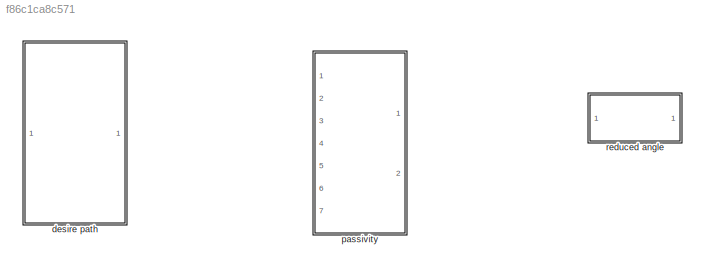
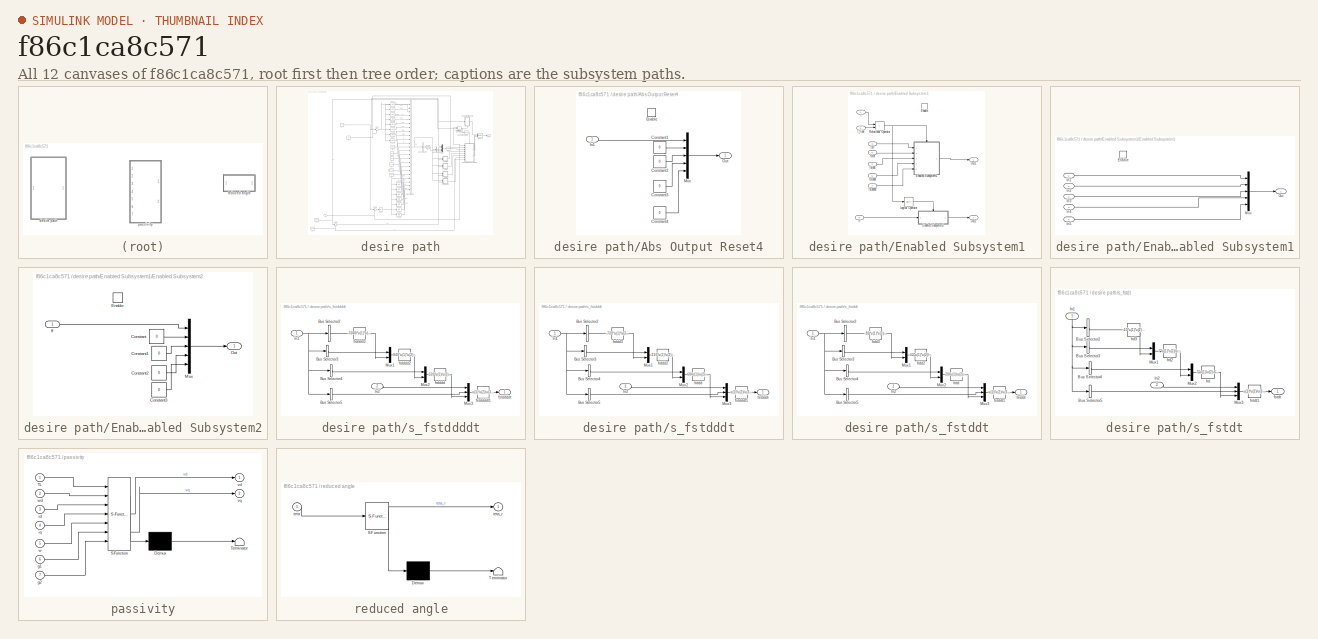
[diagram: thumbnail index - all 12 canvases of the model, root first then tree order]
MODEL slx_f86c1ca8c571
KIND model
CONFIG AbsTol = auto
CONFIG EnableMultiTasking = off
CONFIG FixedStep = auto
CONFIG MaxStep = auto
CONFIG MinStep = auto
CONFIG RelTol = 1e-3
CONFIG SampleTimeConstraint = Unconstrained
CONFIG SolverName = VariableStepAuto
CONFIG StartTime = 0.0
CONFIG StopTime = 10.0
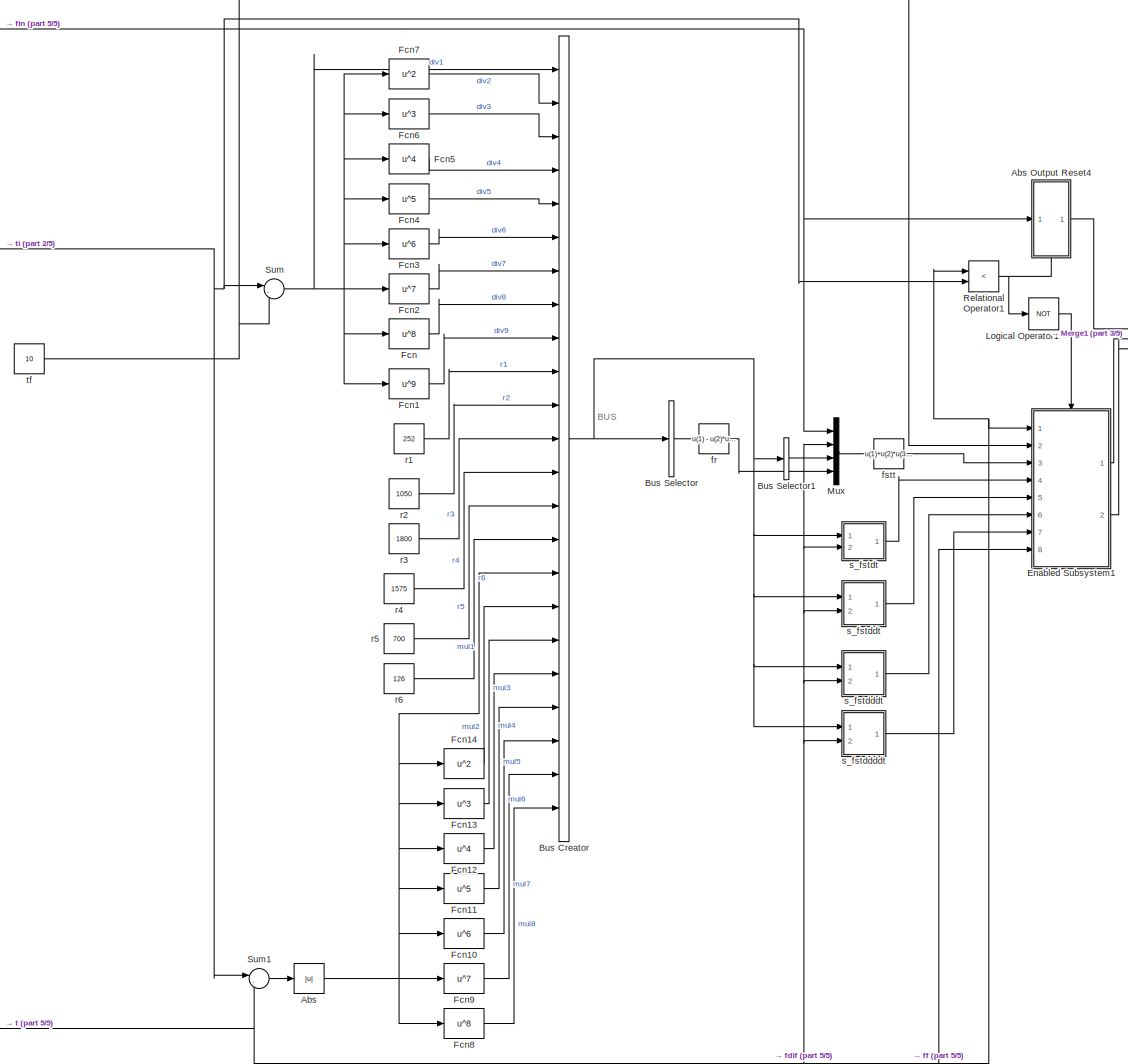
[diagram: desire path - part 1/5, center side, full height]
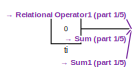
[diagram: desire path - part 2/5, top left region]
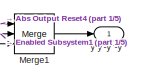
[diagram: desire path - part 3/5, top right region]
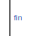
[diagram: desire path - part 4/5, middle left region]
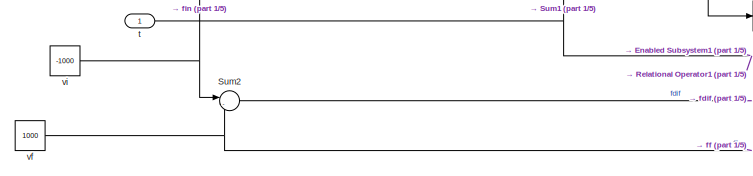
[diagram: desire path - part 5/5, bottom left region]
BLOCK [SubSystem] desire path
  Ports = [1, 1]
  RequestExecContextInheritance = off
BLOCK [Abs] desire path/Abs
BLOCK [SubSystem] desire path/Abs Output Reset4
  NameLocation = top
  Ports = [1, 1, 1]
  RequestExecContextInheritance = off
  TreatAsAtomicUnit = on
BLOCK [Constant] desire path/Abs Output Reset4/Constant1
  Value = 0
BLOCK [Constant] desire path/Abs Output Reset4/Constant2
  Value = 0
BLOCK [Constant] desire path/Abs Output Reset4/Constant3
  Value = 0
BLOCK [Constant] desire path/Abs Output Reset4/Constant4
  Value = 0
BLOCK [EnablePort] desire path/Abs Output Reset4/Enable
  Ports = []
BLOCK [Inport] desire path/Abs Output Reset4/In1
  PortDimensions = 1
BLOCK [Mux] desire path/Abs Output Reset4/Mux
  DisplayOption = bar
  Inputs = 5
  Ports = [5, 1]
BLOCK [Outport] desire path/Abs Output Reset4/Out
  InitialOutput = 0
  VectorParamsAs1DForOutWhenUnconnected = off
BLOCK [BusCreator] desire path/Bus Creator
  DisplayOption = bar
  InheritFromInputs = on
  Inputs = 23
  Ports = [23, 1]
BLOCK [BusSelector] desire path/Bus Selector
  OutputAsBus = on
  OutputSignals = r1,r2,mul1,div1,r3,mul2,div2,r4,mul3,div3,r5,mul4,div4,r6,mul5,div5
  Ports = [1, 1]
BLOCK [BusSelector] desire path/Bus Selector1
  OutputAsBus = on
  OutputSignals = mul5,div5
  Ports = [1, 1]
BLOCK [SubSystem] desire path/Enabled Subsystem1
  Ports = [8, 2, 1]
  RequestExecContextInheritance = off
  TreatAsAtomicUnit = on
BLOCK [EnablePort] desire path/Enabled Subsystem1/Enable
  Ports = []
BLOCK [SubSystem] desire path/Enabled Subsystem1/Enabled Subsystem1
  Ports = [5, 1, 1]
  RequestExecContextInheritance = off
  TreatAsAtomicUnit = on
BLOCK [EnablePort] desire path/Enabled Subsystem1/Enabled Subsystem1/Enable
  Ports = []
BLOCK [Inport] desire path/Enabled Subsystem1/Enabled Subsystem1/In1
  PortDimensions = 1
BLOCK [Inport] desire path/Enabled Subsystem1/Enabled Subsystem1/In2
  Port = 2
  PortDimensions = 1
BLOCK [Inport] desire path/Enabled Subsystem1/Enabled Subsystem1/In3
  Port = 3
  PortDimensions = 1
BLOCK [Inport] desire path/Enabled Subsystem1/Enabled Subsystem1/In4
  Port = 4
  PortDimensions = 1
BLOCK [Inport] desire path/Enabled Subsystem1/Enabled Subsystem1/In5
  Port = 5
  PortDimensions = 1
BLOCK [Mux] desire path/Enabled Subsystem1/Enabled Subsystem1/Mux
  DisplayOption = bar
  Inputs = 5
  Ports = [5, 1]
BLOCK [Outport] desire path/Enabled Subsystem1/Enabled Subsystem1/Out
  InitialOutput = 0
  VectorParamsAs1DForOutWhenUnconnected = off
BLOCK [SubSystem] desire path/Enabled Subsystem1/Enabled Subsystem2
  Ports = [1, 1, 1]
  RequestExecContextInheritance = off
  TreatAsAtomicUnit = on
BLOCK [Constant] desire path/Enabled Subsystem1/Enabled Subsystem2/Constant
  Value = 0
BLOCK [Constant] desire path/Enabled Subsystem1/Enabled Subsystem2/Constant1
  Value = 0
BLOCK [Constant] desire path/Enabled Subsystem1/Enabled Subsystem2/Constant2
  Value = 0
BLOCK [Constant] desire path/Enabled Subsystem1/Enabled Subsystem2/Constant3
  Value = 0
BLOCK [EnablePort] desire path/Enabled Subsystem1/Enabled Subsystem2/Enable
  Ports = []
BLOCK [Mux] desire path/Enabled Subsystem1/Enabled Subsystem2/Mux
  DisplayOption = bar
  Inputs = 5
  Ports = [5, 1]
BLOCK [Outport] desire path/Enabled Subsystem1/Enabled Subsystem2/Out
  InitialOutput = 0
  VectorParamsAs1DForOutWhenUnconnected = off
BLOCK [Inport] desire path/Enabled Subsystem1/Enabled Subsystem2/ff
  PortDimensions = 1
BLOCK [Logic] desire path/Enabled Subsystem1/Logical Operator
  AllPortsSameDT = off
  Operator = NOT
  Ports = [1, 1]
BLOCK [Outport] desire path/Enabled Subsystem1/Out1
  VectorParamsAs1DForOutWhenUnconnected = off
BLOCK [Outport] desire path/Enabled Subsystem1/Out2
  Port = 2
  VectorParamsAs1DForOutWhenUnconnected = off
BLOCK [RelationalOperator] desire path/Enabled Subsystem1/Relational Operator
  InputSameDT = off
  Operator = <
  Ports = [2, 1]
BLOCK [Inport] desire path/Enabled Subsystem1/ff
  Port = 8
  PortDimensions = 1
BLOCK [Inport] desire path/Enabled Subsystem1/fstddddt
  Port = 7
  PortDimensions = 1
BLOCK [Inport] desire path/Enabled Subsystem1/fstdddt
  Port = 6
  PortDimensions = 1
BLOCK [Inport] desire path/Enabled Subsystem1/fstddt
  Port = 5
  PortDimensions = 1
BLOCK [Inport] desire path/Enabled Subsystem1/fstdt
  Port = 4
  PortDimensions = 1
BLOCK [Inport] desire path/Enabled Subsystem1/fstt
  Port = 3
  PortDimensions = 1
BLOCK [Inport] desire path/Enabled Subsystem1/t
  PortDimensions = 1
BLOCK [Inport] desire path/Enabled Subsystem1/t_final
  Port = 2
  PortDimensions = 1
BLOCK [Fcn] desire path/Fcn
  Expr = u^8
BLOCK [Fcn] desire path/Fcn1
  Expr = u^9
BLOCK [Fcn] desire path/Fcn10
  Expr = u^6
BLOCK [Fcn] desire path/Fcn11
  Expr = u^5
BLOCK [Fcn] desire path/Fcn12
  Expr = u^4
BLOCK [Fcn] desire path/Fcn13
  Expr = u^3
BLOCK [Fcn] desire path/Fcn14
  Expr = u^2
BLOCK [Fcn] desire path/Fcn2
  Expr = u^7
BLOCK [Fcn] desire path/Fcn3
  Expr = u^6
BLOCK [Fcn] desire path/Fcn4
  Expr = u^5
BLOCK [Fcn] desire path/Fcn5
  Expr = u^4
BLOCK [Fcn] desire path/Fcn6
  Expr = u^3
BLOCK [Fcn] desire path/Fcn7
  Expr = u^2
BLOCK [Fcn] desire path/Fcn8
  Expr = u^8
BLOCK [Fcn] desire path/Fcn9
  Expr = u^7
BLOCK [Logic] desire path/Logical Operator1
  AllPortsSameDT = off
  Operator = NOT
  Ports = [1, 1]
BLOCK [Merge] desire path/Merge1
  Inputs = 3
  Ports = [3, 1]
BLOCK [Mux] desire path/Mux
  DisplayOption = bar
  Ports = [4, 1]
BLOCK [RelationalOperator] desire path/Relational Operator1
  InputSameDT = off
  Operator = <
  Ports = [2, 1]
BLOCK [Sum] desire path/Sum
  Inputs = |-+
  Ports = [2, 1]
  SaturateOnIntegerOverflow = on
BLOCK [Sum] desire path/Sum1
  Inputs = |-+
  Ports = [2, 1]
  SaturateOnIntegerOverflow = on
BLOCK [Sum] desire path/Sum2
  Inputs = |-+
  Ports = [2, 1]
  SaturateOnIntegerOverflow = on
BLOCK [Fcn] desire path/fr
  Expr = u(1) - u(2)*u(3)/u(4)+u(5)*u(6)/u(7) - u(8)*u(9)/u(10) + u(11)*u(12)/u(13) - u(14)*u(15)/u(16)
BLOCK [Fcn] desire path/fstt
  Expr = u(1)+u(2)*u(3)/u(4)*u(5)
BLOCK [Constant] desire path/r1
  Value = 252
BLOCK [Constant] desire path/r2
  Value = 1050
BLOCK [Constant] desire path/r3
  Value = 1800
BLOCK [Constant] desire path/r4
  Value = 1575
BLOCK [Constant] desire path/r5
  Value = 700
BLOCK [Constant] desire path/r6
  Value = 126
BLOCK [SubSystem] desire path/s_fstddddt
  Ports = [2, 1]
  RequestExecContextInheritance = off
BLOCK [BusSelector] desire path/s_fstddddt/Bus Selector2
  OutputAsBus = on
  OutputSignals = r6,mul5,div9
  Ports = [1, 1]
BLOCK [BusSelector] desire path/s_fstddddt/Bus Selector3
  OutputAsBus = on
  OutputSignals = r3,mul2,div6,r4,mul3,div7,r5,mul4,div8
  Ports = [1, 1]
BLOCK [BusSelector] desire path/s_fstddddt/Bus Selector4
  OutputAsBus = on
  OutputSignals = r1,div4,r2,mul1,div5
  Ports = [1, 1]
BLOCK [BusSelector] desire path/s_fstddddt/Bus Selector5
  OutputAsBus = on
  OutputSignals = mul1,div1
  Ports = [1, 1]
BLOCK [Inport] desire path/s_fstddddt/In1
  PortDimensions = 23
BLOCK [Inport] desire path/s_fstddddt/In2
  Port = 2
  PortDimensions = 1
BLOCK [Mux] desire path/s_fstddddt/Mux1
  DisplayOption = bar
  Inputs = 2
  Ports = [2, 1]
BLOCK [Mux] desire path/s_fstddddt/Mux2
  DisplayOption = bar
  Inputs = 2
  Ports = [2, 1]
BLOCK [Mux] desire path/s_fstddddt/Mux3
  DisplayOption = bar
  Inputs = 3
  Ports = [3, 1]
BLOCK [Fcn] desire path/s_fstddddt/frdddd
  Expr = 120*u(1)/u(2)-360*u(3)*u(4)/u(5)+ u(6)
BLOCK [Fcn] desire path/s_fstddddt/frdddd2
  Expr = 840*u(1)*u(2)/u(3)-1680*u(4)*u(5)/u(6)+3024*u(7)*u(8)/u(9)+u(10)
BLOCK [Fcn] desire path/s_fstddddt/frdddd3
  Expr = -5040*u(1)*u(2)/u(3)
BLOCK [Outport] desire path/s_fstddddt/fstddddt
  VectorParamsAs1DForOutWhenUnconnected = off
BLOCK [Fcn] desire path/s_fstddddt/fstddddt1
  Expr = u(1)*u(2)/u(3)*u(4)
BLOCK [SubSystem] desire path/s_fstdddt
  Ports = [2, 1]
  RequestExecContextInheritance = off
BLOCK [BusSelector] desire path/s_fstdddt/Bus Selector2
  OutputAsBus = on
  OutputSignals = r6,mul5,div8
  Ports = [1, 1]
BLOCK [BusSelector] desire path/s_fstdddt/Bus Selector3
  OutputAsBus = on
  OutputSignals = r3,mul2,div5,r4,mul3,div6,r5,mul4,div7
  Ports = [1, 1]
BLOCK [BusSelector] desire path/s_fstdddt/Bus Selector4
  OutputAsBus = on
  OutputSignals = r1,div3,r2,mul1,div4
  Ports = [1, 1]
BLOCK [BusSelector] desire path/s_fstdddt/Bus Selector5
  OutputAsBus = on
  OutputSignals = mul2,div2
  Ports = [1, 1]
BLOCK [Inport] desire path/s_fstdddt/In1
  PortDimensions = 23
BLOCK [Inport] desire path/s_fstdddt/In2
  Port = 2
  PortDimensions = 1
BLOCK [Mux] desire path/s_fstdddt/Mux1
  DisplayOption = bar
  Inputs = 2
  Ports = [2, 1]
BLOCK [Mux] desire path/s_fstdddt/Mux2
  DisplayOption = bar
  Inputs = 2
  Ports = [2, 1]
BLOCK [Mux] desire path/s_fstdddt/Mux3
  DisplayOption = bar
  Inputs = 3
  Ports = [3, 1]
BLOCK [Fcn] desire path/s_fstdddt/frddd
  Expr = 60*u(1)/u(2)-120*u(3)*u(4)/u(5)+u(6)
BLOCK [Fcn] desire path/s_fstdddt/frddd2
  Expr = 210*u(1)*u(2)/u(3)-336*u(4)*u(5)/u(6)+504*u(7)*u(8)/u(9)+u(10)
BLOCK [Fcn] desire path/s_fstdddt/frddd3
  Expr = -720*u(1)*u(2)/u(3)
BLOCK [Outport] desire path/s_fstdddt/fstdddt
  VectorParamsAs1DForOutWhenUnconnected = off
BLOCK [Fcn] desire path/s_fstdddt/fstdddt1
  Expr = u(1)*u(2)/u(3)*u(4)
BLOCK [SubSystem] desire path/s_fstddt
  Ports = [2, 1]
  RequestExecContextInheritance = off
BLOCK [BusSelector] desire path/s_fstddt/Bus Selector2
  OutputAsBus = on
  OutputSignals = r6,mul5,div7
  Ports = [1, 1]
BLOCK [BusSelector] desire path/s_fstddt/Bus Selector3
  OutputAsBus = on
  OutputSignals = r3,mul2,div4,r4,mul3,div5,r5,mul4,div6
  Ports = [1, 1]
BLOCK [BusSelector] desire path/s_fstddt/Bus Selector4
  OutputAsBus = on
  OutputSignals = r1,div2,r2,mul1,div3
  Ports = [1, 1]
BLOCK [BusSelector] desire path/s_fstddt/Bus Selector5
  OutputAsBus = on
  OutputSignals = mul3,div3
  Ports = [1, 1]
BLOCK [Inport] desire path/s_fstddt/In1
  PortDimensions = 23
BLOCK [Inport] desire path/s_fstddt/In2
  Port = 2
  PortDimensions = 1
BLOCK [Mux] desire path/s_fstddt/Mux1
  DisplayOption = bar
  Inputs = 2
  Ports = [2, 1]
BLOCK [Mux] desire path/s_fstddt/Mux2
  DisplayOption = bar
  Inputs = 2
  Ports = [2, 1]
BLOCK [Mux] desire path/s_fstddt/Mux3
  DisplayOption = bar
  Inputs = 3
  Ports = [3, 1]
BLOCK [Fcn] desire path/s_fstddt/frdd
  Expr = 20*u(1)/u(2)-30*u(3)*u(4)/u(5)+ u(6)
BLOCK [Fcn] desire path/s_fstddt/frdd2
  Expr = 42*u(1)*u(2)/u(3)-56*u(4)*u(5)/u(6)+72*u(7)*u(8)/u(9)+u(10)
BLOCK [Fcn] desire path/s_fstddt/frdd3
  Expr = -90*u(1)*u(2)/u(3)
BLOCK [Outport] desire path/s_fstddt/fstddt
  VectorParamsAs1DForOutWhenUnconnected = off
BLOCK [Fcn] desire path/s_fstddt/fstddt1
  Expr = u(1)*u(2)/u(3)*u(4)
BLOCK [SubSystem] desire path/s_fstdt
  Ports = [2, 1]
  RequestExecContextInheritance = off
BLOCK [BusSelector] desire path/s_fstdt/Bus Selector2
  OutputAsBus = on
  OutputSignals = r6,mul5,div6
  Ports = [1, 1]
BLOCK [BusSelector] desire path/s_fstdt/Bus Selector3
  OutputAsBus = on
  OutputSignals = r3,mul2,div3,r4,mul3,div4,r5,mul4,div5
  Ports = [1, 1]
BLOCK [BusSelector] desire path/s_fstdt/Bus Selector4
  OutputAsBus = on
  OutputSignals = r1,div1,r2,mul1,div2
  Ports = [1, 1]
BLOCK [BusSelector] desire path/s_fstdt/Bus Selector5
  OutputAsBus = on
  OutputSignals = mul4,div4
  Ports = [1, 1]
BLOCK [Inport] desire path/s_fstdt/In1
  NameLocation = right
  PortDimensions = 23
BLOCK [Inport] desire path/s_fstdt/In2
  Port = 2
  PortDimensions = 1
BLOCK [Mux] desire path/s_fstdt/Mux1
  DisplayOption = bar
  Inputs = 2
  Ports = [2, 1]
BLOCK [Mux] desire path/s_fstdt/Mux2
  DisplayOption = bar
  Inputs = 2
  Ports = [2, 1]
BLOCK [Mux] desire path/s_fstdt/Mux3
  DisplayOption = bar
  Inputs = 3
  Ports = [3, 1]
BLOCK [Fcn] desire path/s_fstdt/frd
  Expr = 5*u(1)/u(2)-6*u(3)*u(4)/u(5)+u(6)
BLOCK [Fcn] desire path/s_fstdt/frd2
  Expr = 7*u(1)*u(2)/u(3)-8*u(4)*u(5)/u(6)+9*u(7)*u(8)/u(9)+u(10)
BLOCK [Fcn] desire path/s_fstdt/frd3
  Expr = -10*u(1)*u(2)/u(3)
BLOCK [Outport] desire path/s_fstdt/fstdt
  VectorParamsAs1DForOutWhenUnconnected = off
BLOCK [Fcn] desire path/s_fstdt/fstdt1
  Expr = u(1)*u(2)/u(3)*u(4)
BLOCK [Inport] desire path/t
BLOCK [Constant] desire path/tf
  Value = 10
BLOCK [Constant] desire path/ti
  Value = 0
BLOCK [Constant] desire path/vf
  Value = 1000
BLOCK [Constant] desire path/vi
  Value = -1000
BLOCK [Outport] desire path/y-y'-y''-y'''
  VectorParamsAs1DForOutWhenUnconnected = off
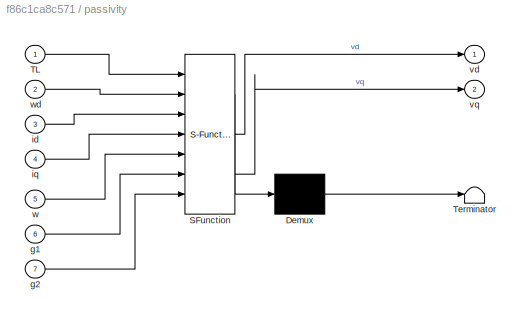
BLOCK [SubSystem] passivity
  ErrorFcn = Stateflow.Translate.translate
  PermitHierarchicalResolution = ExplicitOnly
  Ports = [7, 2]
  RequestExecContextInheritance = off
  SFBlockType = MATLAB Function
  TreatAsAtomicUnit = on
BLOCK [Demux] passivity/ Demux 
  Outputs = 1
  Ports = [1, 1]
BLOCK [S-Function] passivity/ SFunction 
  EnableBusSupport = on
  FunctionName = sf_sfun
  PortCounts = [7 3]
  Ports = [7, 3]
  SFcnIsStateOwnerBlock = off
  SFunctionDeploymentMode = off
  Tag = Stateflow S-Function 3
BLOCK [Terminator] passivity/ Terminator 
BLOCK [Inport] passivity/TL
BLOCK [Inport] passivity/g1
  Port = 6
BLOCK [Inport] passivity/g2
  Port = 7
BLOCK [Inport] passivity/id
  Port = 3
BLOCK [Inport] passivity/iq
  Port = 4
BLOCK [Outport] passivity/vd
BLOCK [Outport] passivity/vq
  Port = 2
BLOCK [Inport] passivity/w
  Port = 5
BLOCK [Inport] passivity/wd
  Port = 2
BLOCK [SubSystem] reduced angle
  ErrorFcn = Stateflow.Translate.translate
  PermitHierarchicalResolution = ExplicitOnly
  Ports = [1, 1]
  RequestExecContextInheritance = off
  SFBlockType = MATLAB Function
  TreatAsAtomicUnit = on
BLOCK [Demux] reduced angle/ Demux 
  Outputs = 1
  Ports = [1, 1]
BLOCK [S-Function] reduced angle/ SFunction 
  EnableBusSupport = on
  FunctionName = sf_sfun
  PortCounts = [1 2]
  Ports = [1, 2]
  SFcnIsStateOwnerBlock = off
  SFunctionDeploymentMode = off
  Tag = Stateflow S-Function 1
BLOCK [Terminator] reduced angle/ Terminator 
BLOCK [Inport] reduced angle/teta
BLOCK [Outport] reduced angle/teta_r
  VectorParamsAs1DForOutWhenUnconnected = off
ANNOTATION desire path: BUS
LINE desire path/Abs Output Reset4/Constant1:1 -> desire path/Abs Output Reset4/Mux:2
LINE desire path/Abs Output Reset4/Constant2:1 -> desire path/Abs Output Reset4/Mux:3
LINE desire path/Abs Output Reset4/Constant3:1 -> desire path/Abs Output Reset4/Mux:4
LINE desire path/Abs Output Reset4/Constant4:1 -> desire path/Abs Output Reset4/Mux:5
LINE desire path/Abs Output Reset4/In1:1 -> desire path/Abs Output Reset4/Mux:1
LINE desire path/Abs Output Reset4/Mux:1 -> desire path/Abs Output Reset4/Out:1
LINE desire path/Abs Output Reset4:1 -> desire path/Merge1:1
NET desire path/Abs:1 -> desire path/Bus Creator:16, desire path/Fcn10:1, desire path/Fcn11:1, desire path/Fcn12:1, desire path/Fcn13:1, desire path/Fcn14:1, desire path/Fcn8:1, desire path/Fcn9:1
NET desire path/Bus Creator:1 -> desire path/Bus Selector1:1, desire path/Bus Selector:1, desire path/s_fstddddt:1, desire path/s_fstdddt:1, desire path/s_fstddt:1, desire path/s_fstdt:1
LINE desire path/Bus Selector1:1 -> desire path/Mux:3
LINE desire path/Bus Selector:1 -> desire path/fr:1
LINE desire path/Enabled Subsystem1/Enabled Subsystem1/In1:1 -> desire path/Enabled Subsystem1/Enabled Subsystem1/Mux:1
LINE desire path/Enabled Subsystem1/Enabled Subsystem1/In2:1 -> desire path/Enabled Subsystem1/Enabled Subsystem1/Mux:2
LINE desire path/Enabled Subsystem1/Enabled Subsystem1/In3:1 -> desire path/Enabled Subsystem1/Enabled Subsystem1/Mux:3
LINE desire path/Enabled Subsystem1/Enabled Subsystem1/In4:1 -> desire path/Enabled Subsystem1/Enabled Subsystem1/Mux:4
LINE desire path/Enabled Subsystem1/Enabled Subsystem1/In5:1 -> desire path/Enabled Subsystem1/Enabled Subsystem1/Mux:5
LINE desire path/Enabled Subsystem1/Enabled Subsystem1/Mux:1 -> desire path/Enabled Subsystem1/Enabled Subsystem1/Out:1
LINE desire path/Enabled Subsystem1/Enabled Subsystem1:1 -> desire path/Enabled Subsystem1/Out1:1
LINE desire path/Enabled Subsystem1/Enabled Subsystem2/Constant1:1 -> desire path/Enabled Subsystem1/Enabled Subsystem2/Mux:3
LINE desire path/Enabled Subsystem1/Enabled Subsystem2/Constant2:1 -> desire path/Enabled Subsystem1/Enabled Subsystem2/Mux:4
LINE desire path/Enabled Subsystem1/Enabled Subsystem2/Constant3:1 -> desire path/Enabled Subsystem1/Enabled Subsystem2/Mux:5
LINE desire path/Enabled Subsystem1/Enabled Subsystem2/Constant:1 -> desire path/Enabled Subsystem1/Enabled Subsystem2/Mux:2
LINE desire path/Enabled Subsystem1/Enabled Subsystem2/Mux:1 -> desire path/Enabled Subsystem1/Enabled Subsystem2/Out:1
LINE desire path/Enabled Subsystem1/Enabled Subsystem2/ff:1 -> desire path/Enabled Subsystem1/Enabled Subsystem2/Mux:1
LINE desire path/Enabled Subsystem1/Enabled Subsystem2:1 -> desire path/Enabled Subsystem1/Out2:1
LINE desire path/Enabled Subsystem1/Logical Operator:1 -> desire path/Enabled Subsystem1/Enabled Subsystem2:enable
NET desire path/Enabled Subsystem1/Relational Operator:1 -> desire path/Enabled Subsystem1/Enabled Subsystem1:enable, desire path/Enabled Subsystem1/Logical Operator:1
LINE desire path/Enabled Subsystem1/ff:1 -> desire path/Enabled Subsystem1/Enabled Subsystem2:1
LINE desire path/Enabled Subsystem1/fstddddt:1 -> desire path/Enabled Subsystem1/Enabled Subsystem1:5
LINE desire path/Enabled Subsystem1/fstdddt:1 -> desire path/Enabled Subsystem1/Enabled Subsystem1:4
LINE desire path/Enabled Subsystem1/fstddt:1 -> desire path/Enabled Subsystem1/Enabled Subsystem1:3
LINE desire path/Enabled Subsystem1/fstdt:1 -> desire path/Enabled Subsystem1/Enabled Subsystem1:2
LINE desire path/Enabled Subsystem1/fstt:1 -> desire path/Enabled Subsystem1/Enabled Subsystem1:1
LINE desire path/Enabled Subsystem1/t:1 -> desire path/Enabled Subsystem1/Relational Operator:1
LINE desire path/Enabled Subsystem1/t_final:1 -> desire path/Enabled Subsystem1/Relational Operator:2
LINE desire path/Enabled Subsystem1:1 -> desire path/Merge1:2
LINE desire path/Enabled Subsystem1:2 -> desire path/Merge1:3
LINE desire path/Fcn10:1 -> desire path/Bus Creator:21
LINE desire path/Fcn11:1 -> desire path/Bus Creator:20
LINE desire path/Fcn12:1 -> desire path/Bus Creator:19
LINE desire path/Fcn13:1 -> desire path/Bus Creator:18
LINE desire path/Fcn14:1 -> desire path/Bus Creator:17
LINE desire path/Fcn1:1 -> desire path/Bus Creator:9
LINE desire path/Fcn2:1 -> desire path/Bus Creator:7
LINE desire path/Fcn3:1 -> desire path/Bus Creator:6
LINE desire path/Fcn4:1 -> desire path/Bus Creator:5
LINE desire path/Fcn5:1 -> desire path/Bus Creator:4
LINE desire path/Fcn6:1 -> desire path/Bus Creator:3
LINE desire path/Fcn7:1 -> desire path/Bus Creator:2
LINE desire path/Fcn8:1 -> desire path/Bus Creator:23
LINE desire path/Fcn9:1 -> desire path/Bus Creator:22
LINE desire path/Fcn:1 -> desire path/Bus Creator:8
LINE desire path/Logical Operator1:1 -> desire path/Enabled Subsystem1:enable
LINE desire path/Merge1:1 -> desire path/y-y'-y''-y''':1
LINE desire path/Mux:1 -> desire path/fstt:1
NET desire path/Relational Operator1:1 -> desire path/Abs Output Reset4:enable, desire path/Logical Operator1:1
LINE desire path/Sum1:1 -> desire path/Abs:1
NET desire path/Sum2:1 -> desire path/Mux:2, desire path/s_fstddddt:2, desire path/s_fstdddt:2, desire path/s_fstddt:2, desire path/s_fstdt:2
NET desire path/Sum:1 -> desire path/Bus Creator:1, desire path/Fcn1:1, desire path/Fcn2:1, desire path/Fcn3:1, desire path/Fcn4:1, desire path/Fcn5:1, desire path/Fcn6:1, desire path/Fcn7:1, desire path/Fcn:1
LINE desire path/fr:1 -> desire path/Mux:4
LINE desire path/fstt:1 -> desire path/Enabled Subsystem1:3
LINE desire path/r1:1 -> desire path/Bus Creator:10
LINE desire path/r2:1 -> desire path/Bus Creator:11
LINE desire path/r3:1 -> desire path/Bus Creator:12
LINE desire path/r4:1 -> desire path/Bus Creator:13
LINE desire path/r5:1 -> desire path/Bus Creator:14
LINE desire path/r6:1 -> desire path/Bus Creator:15
LINE desire path/s_fstddddt/Bus Selector2:1 -> desire path/s_fstddddt/frdddd3:1
LINE desire path/s_fstddddt/Bus Selector3:1 -> desire path/s_fstddddt/Mux1:1
LINE desire path/s_fstddddt/Bus Selector4:1 -> desire path/s_fstddddt/Mux2:1
LINE desire path/s_fstddddt/Bus Selector5:1 -> desire path/s_fstddddt/Mux3:2
NET desire path/s_fstddddt/In1:1 -> desire path/s_fstddddt/Bus Selector2:1, desire path/s_fstddddt/Bus Selector3:1, desire path/s_fstddddt/Bus Selector4:1, desire path/s_fstddddt/Bus Selector5:1
LINE desire path/s_fstddddt/In2:1 -> desire path/s_fstddddt/Mux3:1
LINE desire path/s_fstddddt/Mux1:1 -> desire path/s_fstddddt/frdddd2:1
LINE desire path/s_fstddddt/Mux2:1 -> desire path/s_fstddddt/frdddd:1
LINE desire path/s_fstddddt/Mux3:1 -> desire path/s_fstddddt/fstddddt1:1
LINE desire path/s_fstddddt/frdddd2:1 -> desire path/s_fstddddt/Mux2:2
LINE desire path/s_fstddddt/frdddd3:1 -> desire path/s_fstddddt/Mux1:2
LINE desire path/s_fstddddt/frdddd:1 -> desire path/s_fstddddt/Mux3:3
LINE desire path/s_fstddddt/fstddddt1:1 -> desire path/s_fstddddt/fstddddt:1
LINE desire path/s_fstddddt:1 -> desire path/Enabled Subsystem1:7
LINE desire path/s_fstdddt/Bus Selector2:1 -> desire path/s_fstdddt/frddd3:1
LINE desire path/s_fstdddt/Bus Selector3:1 -> desire path/s_fstdddt/Mux1:1
LINE desire path/s_fstdddt/Bus Selector4:1 -> desire path/s_fstdddt/Mux2:1
LINE desire path/s_fstdddt/Bus Selector5:1 -> desire path/s_fstdddt/Mux3:2
NET desire path/s_fstdddt/In1:1 -> desire path/s_fstdddt/Bus Selector2:1, desire path/s_fstdddt/Bus Selector3:1, desire path/s_fstdddt/Bus Selector4:1, desire path/s_fstdddt/Bus Selector5:1
LINE desire path/s_fstdddt/In2:1 -> desire path/s_fstdddt/Mux3:1
LINE desire path/s_fstdddt/Mux1:1 -> desire path/s_fstdddt/frddd2:1
LINE desire path/s_fstdddt/Mux2:1 -> desire path/s_fstdddt/frddd:1
LINE desire path/s_fstdddt/Mux3:1 -> desire path/s_fstdddt/fstdddt1:1
LINE desire path/s_fstdddt/frddd2:1 -> desire path/s_fstdddt/Mux2:2
LINE desire path/s_fstdddt/frddd3:1 -> desire path/s_fstdddt/Mux1:2
LINE desire path/s_fstdddt/frddd:1 -> desire path/s_fstdddt/Mux3:3
LINE desire path/s_fstdddt/fstdddt1:1 -> desire path/s_fstdddt/fstdddt:1
LINE desire path/s_fstdddt:1 -> desire path/Enabled Subsystem1:6
LINE desire path/s_fstddt/Bus Selector2:1 -> desire path/s_fstddt/frdd3:1
LINE desire path/s_fstddt/Bus Selector3:1 -> desire path/s_fstddt/Mux1:1
LINE desire path/s_fstddt/Bus Selector4:1 -> desire path/s_fstddt/Mux2:1
LINE desire path/s_fstddt/Bus Selector5:1 -> desire path/s_fstddt/Mux3:2
NET desire path/s_fstddt/In1:1 -> desire path/s_fstddt/Bus Selector2:1, desire path/s_fstddt/Bus Selector3:1, desire path/s_fstddt/Bus Selector4:1, desire path/s_fstddt/Bus Selector5:1
LINE desire path/s_fstddt/In2:1 -> desire path/s_fstddt/Mux3:1
LINE desire path/s_fstddt/Mux1:1 -> desire path/s_fstddt/frdd2:1
LINE desire path/s_fstddt/Mux2:1 -> desire path/s_fstddt/frdd:1
LINE desire path/s_fstddt/Mux3:1 -> desire path/s_fstddt/fstddt1:1
LINE desire path/s_fstddt/frdd2:1 -> desire path/s_fstddt/Mux2:2
LINE desire path/s_fstddt/frdd3:1 -> desire path/s_fstddt/Mux1:2
LINE desire path/s_fstddt/frdd:1 -> desire path/s_fstddt/Mux3:3
LINE desire path/s_fstddt/fstddt1:1 -> desire path/s_fstddt/fstddt:1
LINE desire path/s_fstddt:1 -> desire path/Enabled Subsystem1:5
LINE desire path/s_fstdt/Bus Selector2:1 -> desire path/s_fstdt/frd3:1
LINE desire path/s_fstdt/Bus Selector3:1 -> desire path/s_fstdt/Mux1:1
LINE desire path/s_fstdt/Bus Selector4:1 -> desire path/s_fstdt/Mux2:1
LINE desire path/s_fstdt/Bus Selector5:1 -> desire path/s_fstdt/Mux3:2
NET desire path/s_fstdt/In1:1 -> desire path/s_fstdt/Bus Selector2:1, desire path/s_fstdt/Bus Selector3:1, desire path/s_fstdt/Bus Selector4:1, desire path/s_fstdt/Bus Selector5:1
LINE desire path/s_fstdt/In2:1 -> desire path/s_fstdt/Mux3:1
LINE desire path/s_fstdt/Mux1:1 -> desire path/s_fstdt/frd2:1
LINE desire path/s_fstdt/Mux2:1 -> desire path/s_fstdt/frd:1
LINE desire path/s_fstdt/Mux3:1 -> desire path/s_fstdt/fstdt1:1
LINE desire path/s_fstdt/frd2:1 -> desire path/s_fstdt/Mux2:2
LINE desire path/s_fstdt/frd3:1 -> desire path/s_fstdt/Mux1:2
LINE desire path/s_fstdt/frd:1 -> desire path/s_fstdt/Mux3:3
LINE desire path/s_fstdt/fstdt1:1 -> desire path/s_fstdt/fstdt:1
LINE desire path/s_fstdt:1 -> desire path/Enabled Subsystem1:4
NET desire path/t:1 -> desire path/Enabled Subsystem1:1, desire path/Relational Operator1:1, desire path/Sum1:2
NET desire path/tf:1 -> desire path/Enabled Subsystem1:2, desire path/Sum:2
NET desire path/ti:1 -> desire path/Relational Operator1:2, desire path/Sum1:1, desire path/Sum:1
NET desire path/vf:1 -> desire path/Enabled Subsystem1:8, desire path/Sum2:2
NET desire path/vi:1 -> desire path/Abs Output Reset4:1, desire path/Mux:1, desire path/Sum2:1
note: NET lines group one-source signal fan-out (src -> all destinations, sorted); 1:1 wires keep LINE
CHART reduced angle states=1 transitions=1
  STATE_LABEL 'eML_blk_kernel()'
  STATE_LABEL 'SCRIPT:\nfunction teta_r = fcn(teta)\n\nif (abs(teta)<2*pi)\n    teta_r=abs(teta);\nelse\n   aux1=abs(teta)/(2*pi);\n   aux2=aux1-floor(aux1);\n   teta_r=aux2*2*pi;\nend    \n'
CHART passivity states=1 transitions=1
  STATE_LABEL 'eML_blk_kernel()'
  STATE_LABEL 'SCRIPT:\nfunction [vd, vq]= fcn(TL, wd, id, iq, w, g1, g2)\n\nRs=1.6;\nR=1.6;\nLq=6.635e-3;\nLd=6.635e-3;\nL=Lq;\nP=2;\nJ=0.182e-3;\nTau=2.09;\nB=J/Tau;\n%B=8.7E-5;\nPhiPM=0.215;\n%PhiPM=0.21309;\nKm=P*PhiPM;\n\niqa=2/(3*Km)*(TL+B*wd);\nvd=-P*L*w*iqa-g1*id;\nvq=Km*wd+R*iqa-g2*(iq-iqa)'
CHART  states=0 transitions=0
CHART  states=0 transitions=0
